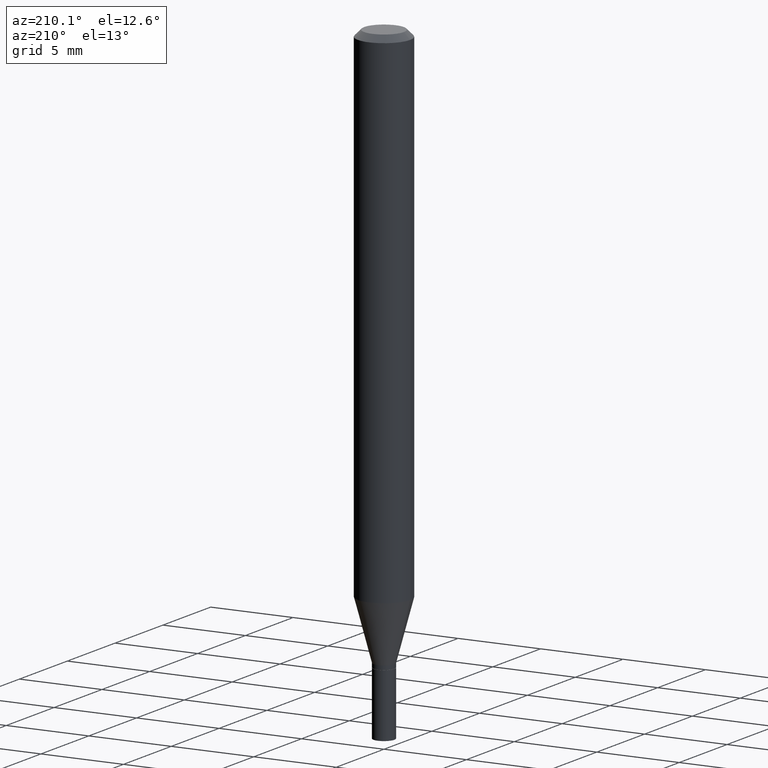
[diagram: clean part render]
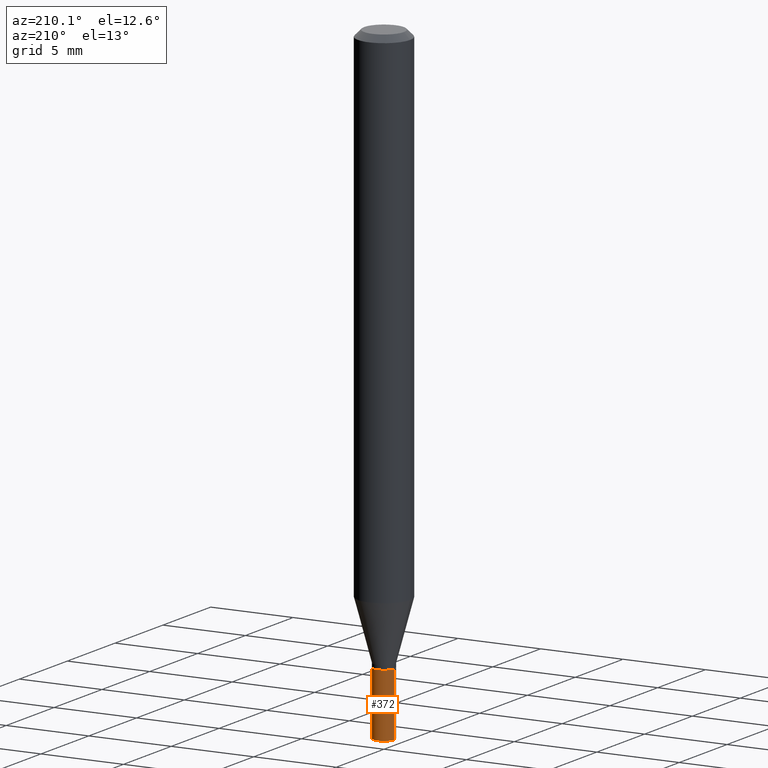
[diagram: same view with one face highlighted and labeled with its STEP entity id]
A machine part, auxiliary view. The second image highlights one B-rep face of the part: STEP entity #372.
In plain terms, the highlighted cylindrical surface (edge-blend (fillet) strip) has radius 0.635 mm, axis along (-0, 0, 1).
Its self-contained STEP definition (entity closure, byte-faithful):
#10 = CARTESIAN_POINT ( 'NONE',  ( -0.02500000000000000139, -4.797725223911457182E-15, -1.500000000000000222 ) ) ;
#21 = LINE ( 'NONE', #412, #213 ) ;
#49 = VERTEX_POINT ( 'NONE', #10 ) ;
#52 = EDGE_CURVE ( 'NONE', #329, #49, #351, .T. ) ;
#56 = CARTESIAN_POINT ( 'NONE',  ( 0.02500000000000000139, -1.745740669421566924E-16, 1.219044193948984123E-30 ) ) ;
#60 = EDGE_CURVE ( 'NONE', #329, #174, #357, .T. ) ;
#108 = ORIENTED_EDGE ( 'NONE', *, *, #52, .T. ) ;
#115 = CYLINDRICAL_SURFACE ( 'NONE', #383, 0.02500000000000000139 ) ;
#140 = VERTEX_POINT ( 'NONE', #303 ) ;
#143 = CARTESIAN_POINT ( 'NONE',  ( 0.000000000000000000, 0.000000000000000000, 0.000000000000000000 ) ) ;
#147 = DIRECTION ( 'NONE',  ( -2.445468806185136877E-29, 3.491481338843145188E-15, 1.000000000000000000 ) ) ;
#159 = VECTOR ( 'NONE', #232, 39.37007874015748143 ) ;
#174 = VERTEX_POINT ( 'NONE', #370 ) ;
#175 = EDGE_LOOP ( 'NONE', ( #108, #217, #203, #178 ) ) ;
#178 = ORIENTED_EDGE ( 'NONE', *, *, #60, .F. ) ;
#184 = CIRCLE ( 'NONE', #461, 0.02500000000000000139 ) ;
#203 = ORIENTED_EDGE ( 'NONE', *, *, #349, .F. ) ;
#213 = VECTOR ( 'NONE', #147, 39.37007874015748143 ) ;
#215 = CARTESIAN_POINT ( 'NONE',  ( 3.301382888349935078E-29, -4.713499807438246596E-15, -1.350000000000000089 ) ) ;
#217 = ORIENTED_EDGE ( 'NONE', *, *, #302, .T. ) ;
#229 = CARTESIAN_POINT ( 'NONE',  ( 3.668203209277704895E-29, -5.237222008264718177E-15, -1.500000000000000222 ) ) ;
#232 = DIRECTION ( 'NONE',  ( -2.445468806185136877E-29, 3.491481338843145188E-15, 1.000000000000000000 ) ) ;
#262 = AXIS2_PLACEMENT_3D ( 'NONE', #229, #364, #283 ) ;
#275 = DIRECTION ( 'NONE',  ( -2.445468806185136597E-29, 3.491481338843145583E-15, 1.000000000000000000 ) ) ;
#283 = DIRECTION ( 'NONE',  ( 1.000000000000000000, -6.982962677686254878E-15, 0.000000000000000000 ) ) ;
#302 = EDGE_CURVE ( 'NONE', #49, #140, #21, .T. ) ;
#303 = CARTESIAN_POINT ( 'NONE',  ( -0.02500000000000000139, -4.797725223911457182E-15, -1.350000000000000089 ) ) ;
#327 = DIRECTION ( 'NONE',  ( 1.000000000000000000, -6.982962677686267499E-15, 4.876176775795936353E-29 ) ) ;
#329 = VERTEX_POINT ( 'NONE', #433 ) ;
#349 = EDGE_CURVE ( 'NONE', #174, #140, #184, .T. ) ;
#351 = CIRCLE ( 'NONE', #262, 0.02500000000000000139 ) ;
#357 = LINE ( 'NONE', #56, #159 ) ;
#364 = DIRECTION ( 'NONE',  ( -2.445468806185136597E-29, 3.491481338843145583E-15, 1.000000000000000000 ) ) ;
#370 = CARTESIAN_POINT ( 'NONE',  ( 0.02500000000000000139, -4.888073874380403263E-15, -1.350000000000000089 ) ) ;
#372 = ADVANCED_FACE ( 'NONE', ( #438 ), #115, .T. ) ;
#383 = AXIS2_PLACEMENT_3D ( 'NONE', #143, #430, #327 ) ;
#412 = CARTESIAN_POINT ( 'NONE',  ( -0.02500000000000000139, 1.776356839400250563E-16, -1.229733772563726656E-30 ) ) ;
#425 = DIRECTION ( 'NONE',  ( 1.000000000000000000, -6.982962677686254878E-15, 0.000000000000000000 ) ) ;
#430 = DIRECTION ( 'NONE',  ( -2.445468806185136597E-29, 3.491481338843145583E-15, 1.000000000000000000 ) ) ;
#433 = CARTESIAN_POINT ( 'NONE',  ( 0.02500000000000000139, -5.411796075206874844E-15, -1.500000000000000222 ) ) ;
#438 = FACE_OUTER_BOUND ( 'NONE', #175, .T. ) ;
#461 = AXIS2_PLACEMENT_3D ( 'NONE', #215, #275, #425 ) ;